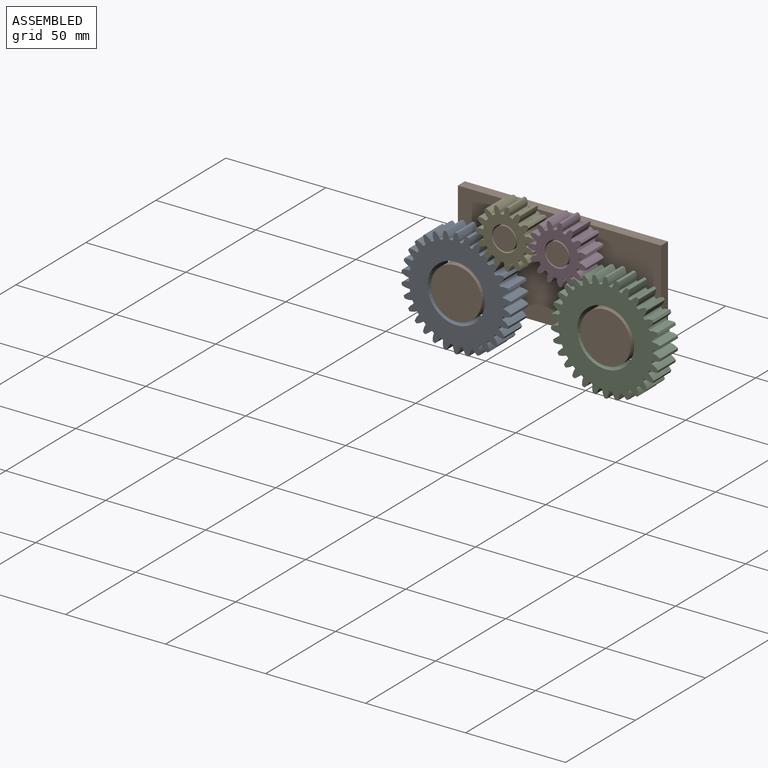
[diagram: assembled view]
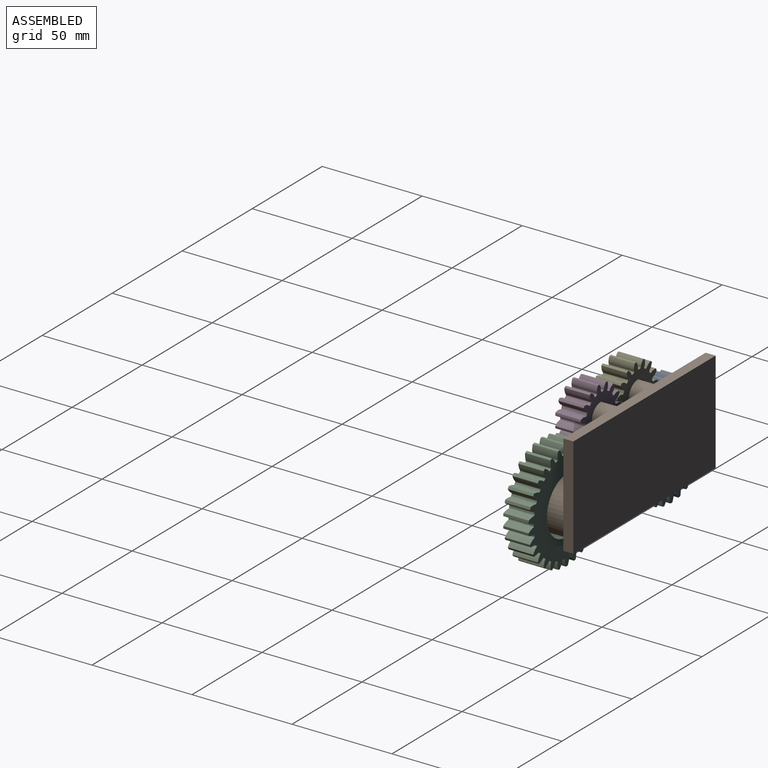
[diagram: assembled view, second angle]
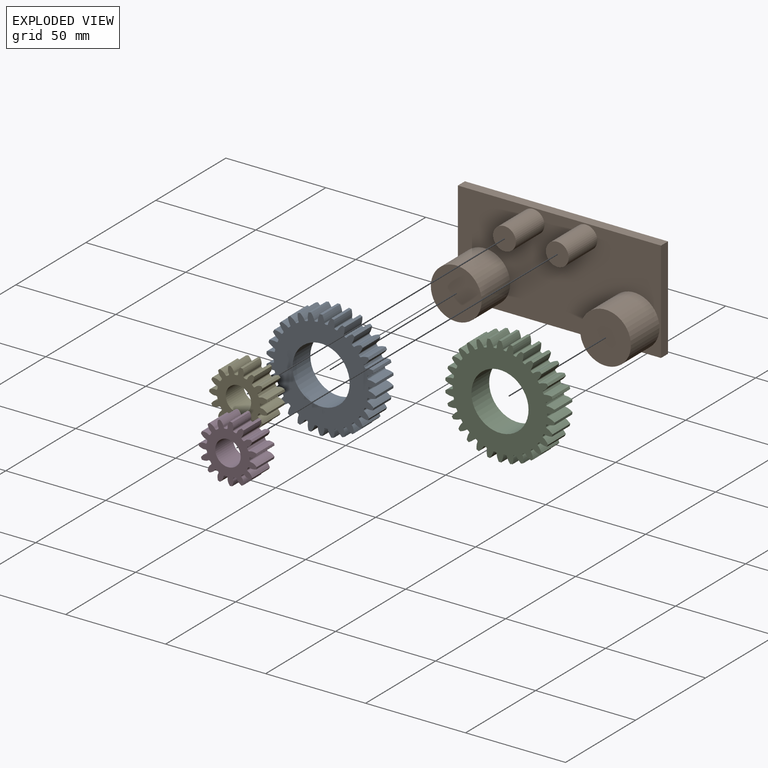
[diagram: exploded view]
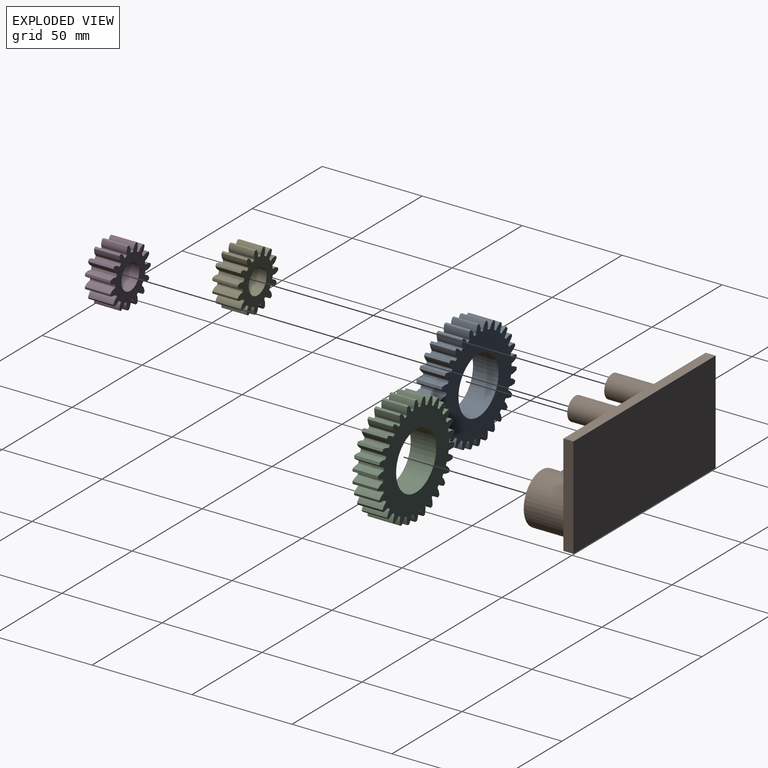
[diagram: exploded view, second angle]
ASSEMBLY  parts=5 mates=4
PART A: 183 faces, bbox 54.7x12.7x54.9 mm
  f0: extruded ~12.7x3.21mm, area 44.5mm2, adj f120,f121,f122,f123
  f1: cylinder r=23.57mm len=12.7mm, axis (0,1,0), area 7.8mm2, adj f121,f122,f123,f124
  f2: extruded ~12.7x3.21mm, area 44.5mm2, adj f3,f121,f122,f124
  f3: cylinder r=27.43mm len=12.7mm, axis (0,1,0), area 16mm2, adj f2,f4,f121,f122
  f4: extruded ~12.7x3.42mm, area 44.5mm2, adj f3,f121,f122,f125
  f5: cylinder r=23.57mm len=12.7mm, axis (0,1,0), area 7.8mm2, adj f121,f122,f125,f126
  f6: extruded ~12.7x2.86mm, area 44.5mm2, adj f7,f121,f122,f126
  f7: cylinder r=27.43mm len=12.7mm, axis (0,1,0), area 16mm2, adj f6,f8,f121,f122
  f8: extruded ~12.7x3.48mm, area 44.5mm2, adj f7,f121,f122,f127
  f9: cylinder r=23.57mm len=12.7mm, axis (0,1,0), area 7.8mm2, adj f121,f122,f127,f128
  f10: extruded ~12.7x2.53mm, area 44.5mm2, adj f11,f121,f122,f128
  f11: cylinder r=27.43mm len=12.7mm, axis (0,1,0), area 16mm2, adj f10,f12,f121,f122
  f12: extruded ~12.7x3.38mm, area 44.5mm2, adj f11,f121,f122,f129
  f13: cylinder r=23.57mm len=12.7mm, axis (0,1,0), area 7.8mm2, adj f121,f122,f129,f130
  f14: extruded ~12.7x2.97mm, area 44.5mm2, adj f15,f121,f122,f130
  f15: cylinder r=27.43mm len=12.7mm, axis (0,1,0), area 16mm2, adj f14,f16,f121,f122
  f16: extruded ~12.7x3.14mm, area 44.5mm2, adj f15,f121,f122,f131
  f17: cylinder r=23.57mm len=12.7mm, axis (0,1,0), area 7.8mm2, adj f121,f122,f131,f132
  f18: extruded ~12.7x3.28mm, area 44.5mm2, adj f19,f121,f122,f132
  f19: cylinder r=27.43mm len=12.7mm, axis (0,1,0), area 16mm2, adj f18,f20,f121,f122
  f20: extruded ~12.7x2.76mm, area 44.5mm2, adj f19,f121,f122,f133
  f21: cylinder r=23.57mm len=12.7mm, axis (0,1,0), area 7.8mm2, adj f121,f122,f133,f134
  f22: extruded ~12.7x3.45mm, area 44.5mm2, adj f23,f121,f122,f134
  f23: cylinder r=27.43mm len=12.7mm, axis (0,1,0), area 16mm2, adj f22,f24,f121,f122
  f24: extruded ~12.7x2.64mm, area 44.5mm2, adj f23,f121,f122,f135
  f25: cylinder r=23.57mm len=12.7mm, axis (0,1,0), area 7.8mm2, adj f121,f122,f135,f136
  f26: extruded ~12.7x3.47mm, area 44.5mm2, adj f27,f121,f122,f136
  f27: cylinder r=27.43mm len=12.7mm, axis (0,1,0), area 16mm2, adj f26,f28,f121,f122
  f28: extruded ~12.7x3.05mm, area 44.5mm2, adj f27,f121,f122,f137
  f29: cylinder r=23.57mm len=12.7mm, axis (0,1,0), area 7.8mm2, adj f121,f122,f137,f138
  f30: extruded ~12.7x3.33mm, area 44.5mm2, adj f31,f121,f122,f138
  f31: cylinder r=27.43mm len=12.7mm, axis (0,1,0), area 16mm2, adj f30,f32,f121,f122
  f32: extruded ~12.7x3.33mm, area 44.5mm2, adj f31,f121,f122,f139
  f33: cylinder r=23.57mm len=12.7mm, axis (0,1,0), area 7.8mm2, adj f121,f122,f139,f140
  f34: extruded ~12.7x3.05mm, area 44.5mm2, adj f35,f121,f122,f140
  f35: cylinder r=27.43mm len=12.7mm, axis (0,1,0), area 16mm2, adj f34,f36,f121,f122
  f36: extruded ~12.7x3.47mm, area 44.5mm2, adj f35,f121,f122,f141
  f37: cylinder r=23.57mm len=12.7mm, axis (0,1,0), area 7.8mm2, adj f121,f122,f141,f142
  f38: extruded ~12.7x2.64mm, area 44.5mm2, adj f39,f121,f122,f142
  f39: cylinder r=27.43mm len=12.7mm, axis (0,1,0), area 16mm2, adj f38,f40,f121,f122
  f40: extruded ~12.7x3.45mm, area 44.5mm2, adj f39,f121,f122,f143
  f41: cylinder r=23.57mm len=12.7mm, axis (0,1,0), area 7.8mm2, adj f121,f122,f143,f144
  f42: extruded ~12.7x2.76mm, area 44.5mm2, adj f43,f121,f122,f144
  f43: cylinder r=27.43mm len=12.7mm, axis (0,1,0), area 16mm2, adj f42,f44,f121,f122
  f44: extruded ~12.7x3.28mm, area 44.5mm2, adj f43,f121,f122,f145
  f45: cylinder r=23.57mm len=12.7mm, axis (0,1,0), area 7.8mm2, adj f121,f122,f145,f146
  f46: extruded ~12.7x3.14mm, area 44.5mm2, adj f47,f121,f122,f146
  f47: cylinder r=27.43mm len=12.7mm, axis (0,1,0), area 16mm2, adj f46,f48,f121,f122
  f48: extruded ~12.7x2.97mm, area 44.5mm2, adj f47,f121,f122,f147
  f49: cylinder r=23.57mm len=12.7mm, axis (0,1,0), area 7.8mm2, adj f121,f122,f147,f148
  f50: extruded ~12.7x3.38mm, area 44.5mm2, adj f51,f121,f122,f148
  f51: cylinder r=27.43mm len=12.7mm, axis (0,1,0), area 16mm2, adj f50,f52,f121,f122
  f52: extruded ~12.7x2.53mm, area 44.5mm2, adj f51,f121,f122,f149
  f53: cylinder r=23.57mm len=12.7mm, axis (0,1,0), area 7.8mm2, adj f121,f122,f149,f150
  f54: extruded ~12.7x3.48mm, area 44.5mm2, adj f55,f121,f122,f150
  f55: cylinder r=27.43mm len=12.7mm, axis (0,1,0), area 16mm2, adj f54,f56,f121,f122
  f56: extruded ~12.7x2.86mm, area 44.5mm2, adj f55,f121,f122,f151
  f57: cylinder r=23.57mm len=12.7mm, axis (0,1,0), area 7.8mm2, adj f121,f122,f151,f152
  f58: extruded ~12.7x3.42mm, area 44.5mm2, adj f59,f121,f122,f152
  f59: cylinder r=27.43mm len=12.7mm, axis (0,1,0), area 16mm2, adj f58,f60,f121,f122
  f60: extruded ~12.7x3.21mm, area 44.5mm2, adj f59,f121,f122,f153
  f61: cylinder r=23.57mm len=12.7mm, axis (0,1,0), area 7.8mm2, adj f121,f122,f153,f154
  f62: extruded ~12.7x3.21mm, area 44.5mm2, adj f63,f121,f122,f154
  f63: cylinder r=27.43mm len=12.7mm, axis (0,1,0), area 16mm2, adj f62,f64,f121,f122
  f64: extruded ~12.7x3.42mm, area 44.5mm2, adj f63,f121,f122,f155
  f65: cylinder r=23.57mm len=12.7mm, axis (0,1,0), area 7.8mm2, adj f121,f122,f155,f156
  f66: extruded ~12.7x2.86mm, area 44.5mm2, adj f67,f121,f122,f156
  f67: cylinder r=27.43mm len=12.7mm, axis (0,1,0), area 16mm2, adj f66,f68,f121,f122
  f68: extruded ~12.7x3.48mm, area 44.5mm2, adj f67,f121,f122,f157
  f69: cylinder r=23.57mm len=12.7mm, axis (0,1,0), area 7.8mm2, adj f121,f122,f157,f158
  f70: extruded ~12.7x2.53mm, area 44.5mm2, adj f71,f121,f122,f158
  f71: cylinder r=27.43mm len=12.7mm, axis (0,1,0), area 16mm2, adj f70,f72,f121,f122
  f72: extruded ~12.7x3.38mm, area 44.5mm2, adj f71,f121,f122,f159
  f73: cylinder r=23.57mm len=12.7mm, axis (0,1,0), area 7.8mm2, adj f121,f122,f159,f160
  f74: extruded ~12.7x2.97mm, area 44.5mm2, adj f75,f121,f122,f160
  f75: cylinder r=27.43mm len=12.7mm, axis (0,1,0), area 16mm2, adj f74,f76,f121,f122
  f76: extruded ~12.7x3.14mm, area 44.5mm2, adj f75,f121,f122,f161
  f77: cylinder r=23.57mm len=12.7mm, axis (0,1,0), area 7.8mm2, adj f121,f122,f161,f162
  f78: extruded ~12.7x3.28mm, area 44.5mm2, adj f79,f121,f122,f162
  f79: cylinder r=27.43mm len=12.7mm, axis (0,1,0), area 16mm2, adj f78,f80,f121,f122
  f80: extruded ~12.7x2.76mm, area 44.5mm2, adj f79,f121,f122,f163
  f81: cylinder r=23.57mm len=12.7mm, axis (0,1,0), area 7.8mm2, adj f121,f122,f163,f164
  f82: extruded ~12.7x3.45mm, area 44.5mm2, adj f83,f121,f122,f164
  f83: cylinder r=27.43mm len=12.7mm, axis (0,1,0), area 16mm2, adj f82,f84,f121,f122
  f84: extruded ~12.7x2.64mm, area 44.5mm2, adj f83,f121,f122,f165
  f85: cylinder r=23.57mm len=12.7mm, axis (0,1,0), area 7.8mm2, adj f121,f122,f165,f166
  f86: extruded ~12.7x3.47mm, area 44.5mm2, adj f87,f121,f122,f166
  f87: cylinder r=27.43mm len=12.7mm, axis (0,1,0), area 16mm2, adj f86,f88,f121,f122
  f88: extruded ~12.7x3.05mm, area 44.5mm2, adj f87,f121,f122,f167
  f89: cylinder r=23.57mm len=12.7mm, axis (0,1,0), area 7.8mm2, adj f121,f122,f167,f168
  f90: extruded ~12.7x3.33mm, area 44.5mm2, adj f91,f121,f122,f168
  f91: cylinder r=27.43mm len=12.7mm, axis (0,1,0), area 16mm2, adj f90,f92,f121,f122
  f92: extruded ~12.7x3.33mm, area 44.5mm2, adj f91,f121,f122,f169
  f93: cylinder r=23.57mm len=12.7mm, axis (0,1,0), area 7.8mm2, adj f121,f122,f169,f170
  f94: extruded ~12.7x3.05mm, area 44.5mm2, adj f95,f121,f122,f170
  f95: cylinder r=27.43mm len=12.7mm, axis (0,1,0), area 16mm2, adj f94,f96,f121,f122
  f96: extruded ~12.7x3.47mm, area 44.5mm2, adj f95,f121,f122,f171
  f97: cylinder r=23.57mm len=12.7mm, axis (0,1,0), area 7.8mm2, adj f121,f122,f171,f172
  f98: extruded ~12.7x2.64mm, area 44.5mm2, adj f99,f121,f122,f172
  f99: cylinder r=27.43mm len=12.7mm, axis (0,1,0), area 16mm2, adj f98,f100,f121,f122
  f100: extruded ~12.7x3.45mm, area 44.5mm2, adj f99,f121,f122,f173
  f101: cylinder r=23.57mm len=12.7mm, axis (0,1,0), area 7.8mm2, adj f121,f122,f173,f174
  f102: extruded ~12.7x2.76mm, area 44.5mm2, adj f103,f121,f122,f174
  f103: cylinder r=27.43mm len=12.7mm, axis (0,1,0), area 16mm2, adj f102,f104,f121,f122
  f104: extruded ~12.7x3.28mm, area 44.5mm2, adj f103,f121,f122,f175
  f105: cylinder r=23.57mm len=12.7mm, axis (0,1,0), area 7.8mm2, adj f121,f122,f175,f176
  f106: extruded ~12.7x3.14mm, area 44.5mm2, adj f107,f121,f122,f176
  f107: cylinder r=27.43mm len=12.7mm, axis (0,1,0), area 16mm2, adj f106,f108,f121,f122
  f108: extruded ~12.7x2.97mm, area 44.5mm2, adj f107,f121,f122,f177
  f109: cylinder r=23.57mm len=12.7mm, axis (0,1,0), area 7.8mm2, adj f121,f122,f177,f178
  f110: extruded ~12.7x3.38mm, area 44.5mm2, adj f111,f121,f122,f178
  f111: cylinder r=27.43mm len=12.7mm, axis (0,1,0), area 16mm2, adj f110,f112,f121,f122
  f112: extruded ~12.7x2.53mm, area 44.5mm2, adj f111,f121,f122,f179
  f113: cylinder r=23.57mm len=12.7mm, axis (0,1,0), area 7.8mm2, adj f121,f122,f179,f180
  f114: extruded ~12.7x3.48mm, area 44.5mm2, adj f115,f121,f122,f180
  f115: cylinder r=27.43mm len=12.7mm, axis (0,1,0), area 16mm2, adj f114,f116,f121,f122
  f116: extruded ~12.7x2.86mm, area 44.5mm2, adj f115,f121,f122,f181
  f117: cylinder r=23.57mm len=12.7mm, axis (0,1,0), area 7.8mm2, adj f121,f122,f181,f182
  f118: extruded ~12.7x3.42mm, area 44.5mm2, adj f120,f121,f122,f182
  f119: cylinder r=14.29mm len=28.58mm, axis (0,1,0), area 1140.1mm2, adj f121,f122
  f120: cylinder r=27.43mm len=12.7mm, axis (0,1,0), area 16mm2, adj f0,f118,f121,f122
  f121: plane 54.86x54.69mm, normal (0,-1,0), area 1412.7mm2, adj f0,f1,f2,f3,f4,f5,f6,f7
  f122: plane 54.86x54.69mm, normal (0,1,0), area 1412.7mm2, adj f0,f1,f2,f3,f4,f5,f6,f7
  f123: cylinder r=0.59mm len=12.7mm, axis (0,1,0), area 11.4mm2, adj f0,f1,f121,f122
  f124: cylinder r=0.59mm len=12.7mm, axis (0,1,0), area 11.4mm2, adj f1,f2,f121,f122
  f125: cylinder r=0.59mm len=12.7mm, axis (0,1,0), area 11.4mm2, adj f4,f5,f121,f122
  f126: cylinder r=0.59mm len=12.7mm, axis (0,1,0), area 11.4mm2, adj f5,f6,f121,f122
  f127: cylinder r=0.59mm len=12.7mm, axis (0,1,0), area 11.4mm2, adj f8,f9,f121,f122
  f128: cylinder r=0.59mm len=12.7mm, axis (0,1,0), area 11.4mm2, adj f9,f10,f121,f122
  f129: cylinder r=0.59mm len=12.7mm, axis (0,1,0), area 11.4mm2, adj f12,f13,f121,f122
  f130: cylinder r=0.59mm len=12.7mm, axis (0,1,0), area 11.4mm2, adj f13,f14,f121,f122
  f131: cylinder r=0.59mm len=12.7mm, axis (0,1,0), area 11.4mm2, adj f16,f17,f121,f122
  f132: cylinder r=0.59mm len=12.7mm, axis (0,1,0), area 11.4mm2, adj f17,f18,f121,f122
  f133: cylinder r=0.59mm len=12.7mm, axis (0,1,0), area 11.4mm2, adj f20,f21,f121,f122
  f134: cylinder r=0.59mm len=12.7mm, axis (0,1,0), area 11.4mm2, adj f21,f22,f121,f122
  f135: cylinder r=0.59mm len=12.7mm, axis (0,1,0), area 11.4mm2, adj f24,f25,f121,f122
  f136: cylinder r=0.59mm len=12.7mm, axis (0,1,0), area 11.4mm2, adj f25,f26,f121,f122
  f137: cylinder r=0.59mm len=12.7mm, axis (0,1,0), area 11.4mm2, adj f28,f29,f121,f122
  f138: cylinder r=0.59mm len=12.7mm, axis (0,1,0), area 11.4mm2, adj f29,f30,f121,f122
  f139: cylinder r=0.59mm len=12.7mm, axis (0,1,0), area 11.4mm2, adj f32,f33,f121,f122
  f140: cylinder r=0.59mm len=12.7mm, axis (0,1,0), area 11.4mm2, adj f33,f34,f121,f122
  f141: cylinder r=0.59mm len=12.7mm, axis (0,1,0), area 11.4mm2, adj f36,f37,f121,f122
  f142: cylinder r=0.59mm len=12.7mm, axis (0,1,0), area 11.4mm2, adj f37,f38,f121,f122
  f143: cylinder r=0.59mm len=12.7mm, axis (0,1,0), area 11.4mm2, adj f40,f41,f121,f122
  f144: cylinder r=0.59mm len=12.7mm, axis (0,1,0), area 11.4mm2, adj f41,f42,f121,f122
  f145: cylinder r=0.59mm len=12.7mm, axis (0,1,0), area 11.4mm2, adj f44,f45,f121,f122
  f146: cylinder r=0.59mm len=12.7mm, axis (0,1,0), area 11.4mm2, adj f45,f46,f121,f122
  f147: cylinder r=0.59mm len=12.7mm, axis (0,1,0), area 11.4mm2, adj f48,f49,f121,f122
  f148: cylinder r=0.59mm len=12.7mm, axis (0,1,0), area 11.4mm2, adj f49,f50,f121,f122
  f149: cylinder r=0.59mm len=12.7mm, axis (0,1,0), area 11.4mm2, adj f52,f53,f121,f122
  f150: cylinder r=0.59mm len=12.7mm, axis (0,1,0), area 11.4mm2, adj f53,f54,f121,f122
  f151: cylinder r=0.59mm len=12.7mm, axis (0,1,0), area 11.4mm2, adj f56,f57,f121,f122
  f152: cylinder r=0.59mm len=12.7mm, axis (0,1,0), area 11.4mm2, adj f57,f58,f121,f122
  f153: cylinder r=0.59mm len=12.7mm, axis (0,1,0), area 11.4mm2, adj f60,f61,f121,f122
  f154: cylinder r=0.59mm len=12.7mm, axis (0,1,0), area 11.4mm2, adj f61,f62,f121,f122
  f155: cylinder r=0.59mm len=12.7mm, axis (0,1,0), area 11.4mm2, adj f64,f65,f121,f122
  f156: cylinder r=0.59mm len=12.7mm, axis (0,1,0), area 11.4mm2, adj f65,f66,f121,f122
  f157: cylinder r=0.59mm len=12.7mm, axis (0,1,0), area 11.4mm2, adj f68,f69,f121,f122
  f158: cylinder r=0.59mm len=12.7mm, axis (0,1,0), area 11.4mm2, adj f69,f70,f121,f122
  f159: cylinder r=0.59mm len=12.7mm, axis (0,1,0), area 11.4mm2, adj f72,f73,f121,f122
  f160: cylinder r=0.59mm len=12.7mm, axis (0,1,0), area 11.4mm2, adj f73,f74,f121,f122
  f161: cylinder r=0.59mm len=12.7mm, axis (0,1,0), area 11.4mm2, adj f76,f77,f121,f122
  f162: cylinder r=0.59mm len=12.7mm, axis (0,1,0), area 11.4mm2, adj f77,f78,f121,f122
  f163: cylinder r=0.59mm len=12.7mm, axis (0,1,0), area 11.4mm2, adj f80,f81,f121,f122
  f164: cylinder r=0.59mm len=12.7mm, axis (0,1,0), area 11.4mm2, adj f81,f82,f121,f122
  f165: cylinder r=0.59mm len=12.7mm, axis (0,1,0), area 11.4mm2, adj f84,f85,f121,f122
  f166: cylinder r=0.59mm len=12.7mm, axis (0,1,0), area 11.4mm2, adj f85,f86,f121,f122
  f167: cylinder r=0.59mm len=12.7mm, axis (0,1,0), area 11.4mm2, adj f88,f89,f121,f122
  f168: cylinder r=0.59mm len=12.7mm, axis (0,1,0), area 11.4mm2, adj f89,f90,f121,f122
  f169: cylinder r=0.59mm len=12.7mm, axis (0,1,0), area 11.4mm2, adj f92,f93,f121,f122
  f170: cylinder r=0.59mm len=12.7mm, axis (0,1,0), area 11.4mm2, adj f93,f94,f121,f122
  f171: cylinder r=0.59mm len=12.7mm, axis (0,1,0), area 11.4mm2, adj f96,f97,f121,f122
  f172: cylinder r=0.59mm len=12.7mm, axis (0,1,0), area 11.4mm2, adj f97,f98,f121,f122
  f173: cylinder r=0.59mm len=12.7mm, axis (0,1,0), area 11.4mm2, adj f100,f101,f121,f122
  f174: cylinder r=0.59mm len=12.7mm, axis (0,1,0), area 11.4mm2, adj f101,f102,f121,f122
  f175: cylinder r=0.59mm len=12.7mm, axis (0,1,0), area 11.4mm2, adj f104,f105,f121,f122
  f176: cylinder r=0.59mm len=12.7mm, axis (0,1,0), area 11.4mm2, adj f105,f106,f121,f122
  f177: cylinder r=0.59mm len=12.7mm, axis (0,1,0), area 11.4mm2, adj f108,f109,f121,f122
  f178: cylinder r=0.59mm len=12.7mm, axis (0,1,0), area 11.4mm2, adj f109,f110,f121,f122
  f179: cylinder r=0.59mm len=12.7mm, axis (0,1,0), area 11.4mm2, adj f112,f113,f121,f122
  f180: cylinder r=0.59mm len=12.7mm, axis (0,1,0), area 11.4mm2, adj f113,f114,f121,f122
  f181: cylinder r=0.59mm len=12.7mm, axis (0,1,0), area 11.4mm2, adj f116,f117,f121,f122
  f182: cylinder r=0.59mm len=12.7mm, axis (0,1,0), area 11.4mm2, adj f117,f118,f121,f122
PART B: 14 faces, bbox 101.6x50.8x25.4 mm
  f0: plane 101.6x5mm, normal (0,1,0), area 508mm2, adj f2,f3,f4,f9
  f1: plane 101.6x5mm, normal (0,-1,0), area 508mm2, adj f2,f3,f4,f9
  f2: plane 50.8x5mm, normal (1,0,0), area 254mm2, adj f0,f1,f3,f4
  f3: plane 101.6x50.8mm, normal (0,0,1), area 3942.6mm2, adj f0,f1,f2,f5,f7,f9,f10,f12
  f4: plane 101.6x50.8mm, normal (0,0,-1), area 5161.3mm2, adj f0,f1,f2,f9
  f5: cylinder r=5.71mm len=20.4mm, axis (0,0,-1), area 732.5mm2, adj f3,f6
  f6: plane 11.43x11.43mm, normal (0,0,1), area 102.6mm2, adj f5
  f7: cylinder r=12.7mm len=25.4mm, axis (0,0,-1), area 1627.8mm2, adj f3,f8
  f8: plane 25.4x25.4mm, normal (0,0,1), area 506.7mm2, adj f7
  f9: plane 50.8x5mm, normal (-1,0,0), area 254mm2, adj f0,f1,f3,f4
  f10: cylinder r=5.71mm len=20.4mm, axis (0,0,-1), area 732.5mm2, adj f3,f11
  f11: plane 11.43x11.43mm, normal (0,0,1), area 102.6mm2, adj f10
  f12: cylinder r=12.7mm len=25.4mm, axis (0,0,-1), area 1627.8mm2, adj f3,f13
  f13: plane 25.4x25.4mm, normal (0,0,1), area 506.7mm2, adj f12
PART C: same geometry as A
PART D: 93 faces, bbox 29x12.7x29.1 mm
  f0: extruded ~12.7x3.07mm, area 44.3mm2, adj f60,f61,f62,f63
  f1: cylinder r=10.72mm len=12.7mm, axis (0,1,0), area 9mm2, adj f61,f62,f63,f64
  f2: extruded ~12.7x3.07mm, area 44.3mm2, adj f3,f61,f62,f64
  f3: cylinder r=14.57mm len=12.7mm, axis (0,1,0), area 14.3mm2, adj f2,f4,f61,f62
  f4: extruded ~12.7x3.4mm, area 44.3mm2, adj f3,f61,f62,f65
  f5: cylinder r=10.72mm len=12.7mm, axis (0,1,0), area 9mm2, adj f61,f62,f65,f66
  f6: extruded ~12.7x2.58mm, area 44.3mm2, adj f7,f61,f62,f66
  f7: cylinder r=14.57mm len=12.7mm, axis (0,1,0), area 14.3mm2, adj f6,f8,f61,f62
  f8: extruded ~12.7x3.14mm, area 44.3mm2, adj f7,f61,f62,f67
  f9: cylinder r=10.72mm len=12.7mm, axis (0,1,0), area 9mm2, adj f61,f62,f67,f68
  f10: extruded ~12.7x3.26mm, area 44.3mm2, adj f11,f61,f62,f68
  f11: cylinder r=14.57mm len=12.7mm, axis (0,1,0), area 14.3mm2, adj f10,f12,f61,f62
  f12: extruded ~12.7x2.46mm, area 44.3mm2, adj f11,f61,f62,f69
  f13: cylinder r=10.72mm len=12.7mm, axis (0,1,0), area 9mm2, adj f61,f62,f69,f70
  f14: extruded ~12.7x3.37mm, area 44.3mm2, adj f15,f61,f62,f70
  f15: cylinder r=14.57mm len=12.7mm, axis (0,1,0), area 14.3mm2, adj f14,f16,f61,f62
  f16: extruded ~12.7x3.2mm, area 44.3mm2, adj f15,f61,f62,f71
  f17: cylinder r=10.72mm len=12.7mm, axis (0,1,0), area 9mm2, adj f61,f62,f71,f72
  f18: extruded ~12.7x2.9mm, area 44.3mm2, adj f19,f61,f62,f72
  f19: cylinder r=14.57mm len=12.7mm, axis (0,1,0), area 14.3mm2, adj f18,f20,f61,f62
  f20: extruded ~12.7x3.39mm, area 44.3mm2, adj f19,f61,f62,f73
  f21: cylinder r=10.72mm len=12.7mm, axis (0,1,0), area 9mm2, adj f61,f62,f73,f74
  f22: extruded ~12.7x2.8mm, area 44.3mm2, adj f23,f61,f62,f74
  f23: cylinder r=14.57mm len=12.7mm, axis (0,1,0), area 14.3mm2, adj f22,f24,f61,f62
  f24: extruded ~12.7x2.99mm, area 44.3mm2, adj f23,f61,f62,f75
  f25: cylinder r=10.72mm len=12.7mm, axis (0,1,0), area 9mm2, adj f61,f62,f75,f76
  f26: extruded ~12.7x3.34mm, area 44.3mm2, adj f27,f61,f62,f76
  f27: cylinder r=14.57mm len=12.7mm, axis (0,1,0), area 14.3mm2, adj f26,f28,f61,f62
  f28: extruded ~12.7x2.7mm, area 44.3mm2, adj f27,f61,f62,f77
  f29: cylinder r=10.72mm len=12.7mm, axis (0,1,0), area 9mm2, adj f61,f62,f77,f78
  f30: extruded ~12.7x3.3mm, area 44.3mm2, adj f31,f61,f62,f78
  f31: cylinder r=14.57mm len=12.7mm, axis (0,1,0), area 14.3mm2, adj f30,f32,f61,f62
  f32: extruded ~12.7x3.3mm, area 44.3mm2, adj f31,f61,f62,f79
  f33: cylinder r=10.72mm len=12.7mm, axis (0,1,0), area 9mm2, adj f61,f62,f79,f80
  f34: extruded ~12.7x2.7mm, area 44.3mm2, adj f35,f61,f62,f80
  f35: cylinder r=14.57mm len=12.7mm, axis (0,1,0), area 14.3mm2, adj f34,f36,f61,f62
  f36: extruded ~12.7x3.34mm, area 44.3mm2, adj f35,f61,f62,f81
  f37: cylinder r=10.72mm len=12.7mm, axis (0,1,0), area 9mm2, adj f61,f62,f81,f82
  f38: extruded ~12.7x2.99mm, area 44.3mm2, adj f39,f61,f62,f82
  f39: cylinder r=14.57mm len=12.7mm, axis (0,1,0), area 14.3mm2, adj f38,f40,f61,f62
  f40: extruded ~12.7x2.8mm, area 44.3mm2, adj f39,f61,f62,f83
  f41: cylinder r=10.72mm len=12.7mm, axis (0,1,0), area 9mm2, adj f61,f62,f83,f84
  f42: extruded ~12.7x3.39mm, area 44.3mm2, adj f43,f61,f62,f84
  f43: cylinder r=14.57mm len=12.7mm, axis (0,1,0), area 14.3mm2, adj f42,f44,f61,f62
  f44: extruded ~12.7x2.9mm, area 44.3mm2, adj f43,f61,f62,f85
  f45: cylinder r=10.72mm len=12.7mm, axis (0,1,0), area 9mm2, adj f61,f62,f85,f86
  f46: extruded ~12.7x3.2mm, area 44.3mm2, adj f47,f61,f62,f86
  f47: cylinder r=14.57mm len=12.7mm, axis (0,1,0), area 14.3mm2, adj f46,f48,f61,f62
  f48: extruded ~12.7x3.37mm, area 44.3mm2, adj f47,f61,f62,f87
  f49: cylinder r=10.72mm len=12.7mm, axis (0,1,0), area 9mm2, adj f61,f62,f87,f88
  f50: extruded ~12.7x2.46mm, area 44.3mm2, adj f51,f61,f62,f88
  f51: cylinder r=14.57mm len=12.7mm, axis (0,1,0), area 14.3mm2, adj f50,f52,f61,f62
  f52: extruded ~12.7x3.26mm, area 44.3mm2, adj f51,f61,f62,f89
  f53: cylinder r=10.72mm len=12.7mm, axis (0,1,0), area 9mm2, adj f61,f62,f89,f90
  f54: extruded ~12.7x3.14mm, area 44.3mm2, adj f55,f61,f62,f90
  f55: cylinder r=14.57mm len=12.7mm, axis (0,1,0), area 14.3mm2, adj f54,f56,f61,f62
  f56: extruded ~12.7x2.58mm, area 44.3mm2, adj f55,f61,f62,f91
  f57: cylinder r=10.72mm len=12.7mm, axis (0,1,0), area 9mm2, adj f61,f62,f91,f92
  f58: extruded ~12.7x3.4mm, area 44.3mm2, adj f60,f61,f62,f92
  f59: cylinder r=6.35mm len=12.7mm, axis (0,1,0), area 506.7mm2, adj f61,f62
  f60: cylinder r=14.57mm len=12.7mm, axis (0,1,0), area 14.3mm2, adj f0,f58,f61,f62
  f61: plane 29.13x28.97mm, normal (0,-1,0), area 377.3mm2, adj f0,f1,f2,f3,f4,f5,f6,f7
  f62: plane 29.13x28.97mm, normal (0,1,0), area 377.3mm2, adj f0,f1,f2,f3,f4,f5,f6,f7
  f63: cylinder r=0.64mm len=12.7mm, axis (0,1,0), area 12.3mm2, adj f0,f1,f61,f62
  f64: cylinder r=0.64mm len=12.7mm, axis (0,1,0), area 12.3mm2, adj f1,f2,f61,f62
  f65: cylinder r=0.64mm len=12.7mm, axis (0,1,0), area 12.3mm2, adj f4,f5,f61,f62
  f66: cylinder r=0.64mm len=12.7mm, axis (0,1,0), area 12.3mm2, adj f5,f6,f61,f62
  f67: cylinder r=0.64mm len=12.7mm, axis (0,1,0), area 12.3mm2, adj f8,f9,f61,f62
  f68: cylinder r=0.64mm len=12.7mm, axis (0,1,0), area 12.3mm2, adj f9,f10,f61,f62
  f69: cylinder r=0.64mm len=12.7mm, axis (0,1,0), area 12.3mm2, adj f12,f13,f61,f62
  f70: cylinder r=0.64mm len=12.7mm, axis (0,1,0), area 12.3mm2, adj f13,f14,f61,f62
  f71: cylinder r=0.64mm len=12.7mm, axis (0,1,0), area 12.3mm2, adj f16,f17,f61,f62
  f72: cylinder r=0.64mm len=12.7mm, axis (0,1,0), area 12.3mm2, adj f17,f18,f61,f62
  f73: cylinder r=0.64mm len=12.7mm, axis (0,1,0), area 12.3mm2, adj f20,f21,f61,f62
  f74: cylinder r=0.64mm len=12.7mm, axis (0,1,0), area 12.3mm2, adj f21,f22,f61,f62
  f75: cylinder r=0.64mm len=12.7mm, axis (0,1,0), area 12.3mm2, adj f24,f25,f61,f62
  f76: cylinder r=0.64mm len=12.7mm, axis (0,1,0), area 12.3mm2, adj f25,f26,f61,f62
  f77: cylinder r=0.64mm len=12.7mm, axis (0,1,0), area 12.3mm2, adj f28,f29,f61,f62
  f78: cylinder r=0.64mm len=12.7mm, axis (0,1,0), area 12.3mm2, adj f29,f30,f61,f62
  f79: cylinder r=0.64mm len=12.7mm, axis (0,1,0), area 12.3mm2, adj f32,f33,f61,f62
  f80: cylinder r=0.64mm len=12.7mm, axis (0,1,0), area 12.3mm2, adj f33,f34,f61,f62
  f81: cylinder r=0.64mm len=12.7mm, axis (0,1,0), area 12.3mm2, adj f36,f37,f61,f62
  f82: cylinder r=0.64mm len=12.7mm, axis (0,1,0), area 12.3mm2, adj f37,f38,f61,f62
  f83: cylinder r=0.64mm len=12.7mm, axis (0,1,0), area 12.3mm2, adj f40,f41,f61,f62
  f84: cylinder r=0.64mm len=12.7mm, axis (0,1,0), area 12.3mm2, adj f41,f42,f61,f62
  f85: cylinder r=0.64mm len=12.7mm, axis (0,1,0), area 12.3mm2, adj f44,f45,f61,f62
  f86: cylinder r=0.64mm len=12.7mm, axis (0,1,0), area 12.3mm2, adj f45,f46,f61,f62
  f87: cylinder r=0.64mm len=12.7mm, axis (0,1,0), area 12.3mm2, adj f48,f49,f61,f62
  f88: cylinder r=0.64mm len=12.7mm, axis (0,1,0), area 12.3mm2, adj f49,f50,f61,f62
  f89: cylinder r=0.64mm len=12.7mm, axis (0,1,0), area 12.3mm2, adj f52,f53,f61,f62
  f90: cylinder r=0.64mm len=12.7mm, axis (0,1,0), area 12.3mm2, adj f53,f54,f61,f62
  f91: cylinder r=0.64mm len=12.7mm, axis (0,1,0), area 12.3mm2, adj f56,f57,f61,f62
  f92: cylinder r=0.64mm len=12.7mm, axis (0,1,0), area 12.3mm2, adj f57,f58,f61,f62
PART E: same geometry as D
PLACE A t=(339.15,-42.86,-317.04)mm
PLACE B rot(axis=(1,0,0),90deg) t=(376.49,-30.16,-296.96)mm
PLACE C t=(413.83,-42.86,-317.04)mm
PLACE D rot(axis=(1,0,0),180deg) t=(389.7,-55.56,-285.83)mm
PLACE E t=(363.28,-42.86,-285.83)mm
MATE fastened C.f3 <-> B.f7  axis (0,-1,0) through (413.83,-55.56,-317.04)mm
MATE fastened D.f3 <-> B.f5  axis (0,-1,0) through (389.7,-55.56,-285.83)mm
MATE fastened E.f3 <-> B.f10  axis (0,1,0) through (363.28,-55.56,-285.83)mm
MATE fastened A.f3 <-> B.f12  axis (0,-1,0) through (339.15,-55.56,-317.04)mm
